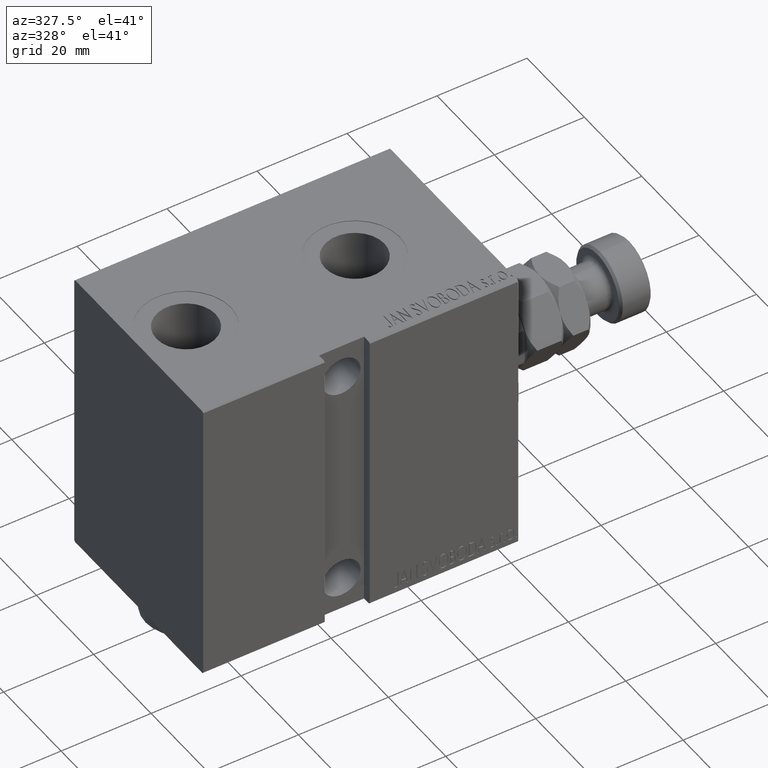
[diagram: clean part render]
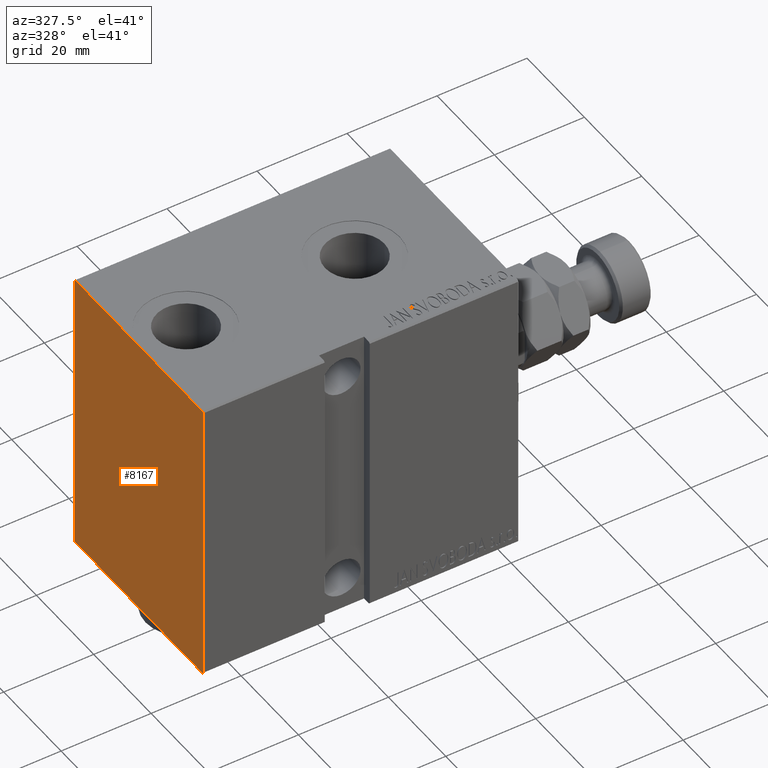
[diagram: same view with one face highlighted and labeled with its STEP entity id]
A machine part, auxiliary view. The second image highlights one B-rep face of the part: STEP entity #8167.
In plain terms, the highlighted planar face has unit normal (-1, 0, 0).
Its self-contained STEP definition (entity closure, byte-faithful):
#554 = AXIS2_PLACEMENT_3D ( 'NONE', #7501, #25313, #31835 ) ;
#1006 = CARTESIAN_POINT ( 'NONE',  ( 70.00000000000000000, -22.49999999999999645, -32.50000000000000000 ) ) ;
#2108 = VECTOR ( 'NONE', #30381, 1000.000000000000000 ) ;
#3343 = CARTESIAN_POINT ( 'NONE',  ( 70.00000000000000000, 22.50000000000000355, -32.19999999999999574 ) ) ;
#3539 = EDGE_CURVE ( 'NONE', #25817, #25305, #4012, .T. ) ;
#3633 = ORIENTED_EDGE ( 'NONE', *, *, #38593, .T. ) ;
#4012 = LINE ( 'NONE', #4249, #35183 ) ;
#4249 = CARTESIAN_POINT ( 'NONE',  ( 70.00000000000000000, 27.35000000000026077, 27.34999999999962839 ) ) ;
#6569 = ORIENTED_EDGE ( 'NONE', *, *, #41996, .T. ) ;
#6879 = ORIENTED_EDGE ( 'NONE', *, *, #14072, .T. ) ;
#7251 = VECTOR ( 'NONE', #11337, 1000.000000000000114 ) ;
#7501 = CARTESIAN_POINT ( 'NONE',  ( 70.00000000000000000, 0.000000000000000000, 0.000000000000000000 ) ) ;
#7825 = VERTEX_POINT ( 'NONE', #14054 ) ;
#8167 = ADVANCED_FACE ( 'NONE', ( #10749 ), #28582, .T. ) ;
#9470 = EDGE_CURVE ( 'NONE', #15517, #11249, #28950, .T. ) ;
#9495 = EDGE_CURVE ( 'NONE', #7825, #40320, #29397, .T. ) ;
#10235 = VECTOR ( 'NONE', #29842, 1000.000000000000114 ) ;
#10528 = DIRECTION ( 'NONE',  ( -0.000000000000000000, -0.7071067811865393571, 0.7071067811865556774 ) ) ;
#10749 = FACE_OUTER_BOUND ( 'NONE', #25274, .T. ) ;
#10792 = ORIENTED_EDGE ( 'NONE', *, *, #9470, .T. ) ;
#10839 = EDGE_CURVE ( 'NONE', #33246, #15517, #33447, .T. ) ;
#10858 = CARTESIAN_POINT ( 'NONE',  ( 70.00000000000000000, -22.19999999999999929, -32.50000000000000000 ) ) ;
#11249 = VERTEX_POINT ( 'NONE', #10858 ) ;
#11337 = DIRECTION ( 'NONE',  ( -0.000000000000000000, 0.7071067811865474617, -0.7071067811865474617 ) ) ;
#12220 = CARTESIAN_POINT ( 'NONE',  ( 70.00000000000000000, 27.34999999999999432, -27.34999999999999432 ) ) ;
#14009 = CARTESIAN_POINT ( 'NONE',  ( 70.00000000000000000, -22.49999999999999645, 32.20000000000000284 ) ) ;
#14054 = CARTESIAN_POINT ( 'NONE',  ( 70.00000000000000000, 22.19999999999998153, -32.50000000000000000 ) ) ;
#14072 = EDGE_CURVE ( 'NONE', #45268, #33246, #38782, .T. ) ;
#14206 = EDGE_CURVE ( 'NONE', #25305, #45268, #39688, .T. ) ;
#15517 = VERTEX_POINT ( 'NONE', #30811 ) ;
#17164 = CARTESIAN_POINT ( 'NONE',  ( 70.00000000000000000, 22.50000000000000355, -32.50000000000000000 ) ) ;
#17267 = DIRECTION ( 'NONE',  ( 0.000000000000000000, -0.7071067811865474617, -0.7071067811865474617 ) ) ;
#18873 = DIRECTION ( 'NONE',  ( 0.000000000000000000, 0.000000000000000000, -1.000000000000000000 ) ) ;
#19306 = DIRECTION ( 'NONE',  ( 0.000000000000000000, 1.000000000000000000, 0.000000000000000000 ) ) ;
#19549 = ORIENTED_EDGE ( 'NONE', *, *, #9495, .T. ) ;
#20627 = LINE ( 'NONE', #17164, #2108 ) ;
#21469 = VECTOR ( 'NONE', #17267, 1000.000000000000114 ) ;
#21736 = ORIENTED_EDGE ( 'NONE', *, *, #3539, .T. ) ;
#23567 = VECTOR ( 'NONE', #18873, 1000.000000000000000 ) ;
#23664 = VECTOR ( 'NONE', #25785, 1000.000000000000000 ) ;
#25114 = CARTESIAN_POINT ( 'NONE',  ( 70.00000000000000000, 22.49999999999999645, 32.50000000000000711 ) ) ;
#25274 = EDGE_LOOP ( 'NONE', ( #3633, #19549, #6569, #21736, #26671, #6879, #34906, #10792 ) ) ;
#25305 = VERTEX_POINT ( 'NONE', #27127 ) ;
#25313 = DIRECTION ( 'NONE',  ( 1.000000000000000000, 0.000000000000000000, 0.000000000000000000 ) ) ;
#25785 = DIRECTION ( 'NONE',  ( 0.000000000000000000, -1.000000000000000000, -1.541976423090495633E-16 ) ) ;
#25817 = VERTEX_POINT ( 'NONE', #41759 ) ;
#26671 = ORIENTED_EDGE ( 'NONE', *, *, #14206, .T. ) ;
#27127 = CARTESIAN_POINT ( 'NONE',  ( 70.00000000000000000, 22.19999999999999929, 32.50000000000000711 ) ) ;
#28097 = CARTESIAN_POINT ( 'NONE',  ( 70.00000000000000000, -22.19999999999998863, 32.50000000000000000 ) ) ;
#28582 = PLANE ( 'NONE',  #554 ) ;
#28950 = LINE ( 'NONE', #43029, #7251 ) ;
#29397 = LINE ( 'NONE', #12220, #10235 ) ;
#29842 = DIRECTION ( 'NONE',  ( -0.000000000000000000, 0.7071067811865474617, 0.7071067811865474617 ) ) ;
#30217 = CARTESIAN_POINT ( 'NONE',  ( 70.00000000000000000, -22.49999999999999645, 32.50000000000000000 ) ) ;
#30381 = DIRECTION ( 'NONE',  ( 0.000000000000000000, -1.067522139062650425E-16, 1.000000000000000000 ) ) ;
#30811 = CARTESIAN_POINT ( 'NONE',  ( 70.00000000000000000, -22.49999999999999645, -32.20000000000000284 ) ) ;
#31835 = DIRECTION ( 'NONE',  ( 0.000000000000000000, 0.000000000000000000, -1.000000000000000000 ) ) ;
#32757 = LINE ( 'NONE', #1006, #35295 ) ;
#33246 = VERTEX_POINT ( 'NONE', #14009 ) ;
#33447 = LINE ( 'NONE', #30217, #23567 ) ;
#34860 = CARTESIAN_POINT ( 'NONE',  ( 70.00000000000000000, -27.35000000000000142, 27.35000000000000142 ) ) ;
#34906 = ORIENTED_EDGE ( 'NONE', *, *, #10839, .T. ) ;
#35183 = VECTOR ( 'NONE', #10528, 1000.000000000000000 ) ;
#35295 = VECTOR ( 'NONE', #19306, 1000.000000000000000 ) ;
#38593 = EDGE_CURVE ( 'NONE', #11249, #7825, #32757, .T. ) ;
#38782 = LINE ( 'NONE', #34860, #21469 ) ;
#39688 = LINE ( 'NONE', #25114, #23664 ) ;
#40320 = VERTEX_POINT ( 'NONE', #3343 ) ;
#41759 = CARTESIAN_POINT ( 'NONE',  ( 70.00000000000000000, 22.49999999999999645, 32.20000000000000284 ) ) ;
#41996 = EDGE_CURVE ( 'NONE', #40320, #25817, #20627, .T. ) ;
#43029 = CARTESIAN_POINT ( 'NONE',  ( 70.00000000000000000, -27.35000000000000142, -27.35000000000000142 ) ) ;
#45268 = VERTEX_POINT ( 'NONE', #28097 ) ;